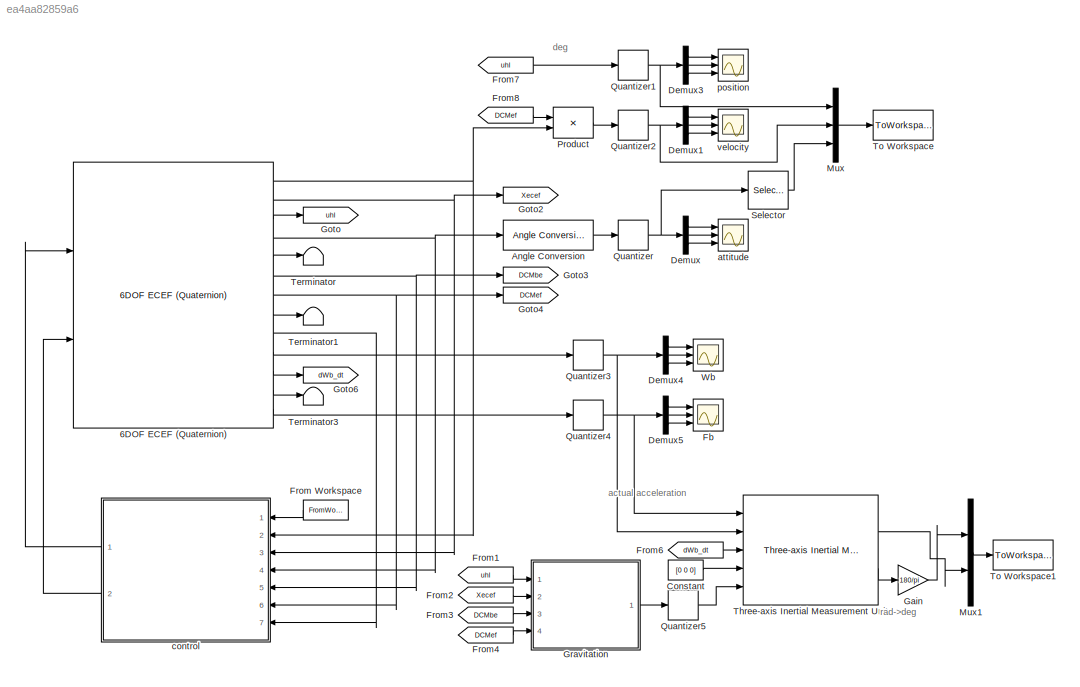
MODEL slx_ea4aa82859a6
KIND model
CONFIG AbsTol = auto
CONFIG EnableMultiTasking = off
CONFIG FixedStep = dt
CONFIG MaxStep = auto
CONFIG MinStep = auto
CONFIG RelTol = 1e-3
CONFIG SampleTimeConstraint = Unconstrained
CONFIG Solver = ode4
CONFIG SolverName = ode4
CONFIG StartTime = 0.0
CONFIG StopTime = T
BLOCK [Reference] 6DOF ECEF (Quaternion)  REF=aerolib6dof2/6DOF ECEF (Quaternion)
  Ports = [2, 13]
  SourceBlock = aerolib6dof2/6DOF ECEF (Quaternion)
  SourceProductBaseCode = AE
  SourceProductName = Aerospace Blockset
  SourceType = 6DOF EoM (ECEF)
BLOCK [Reference] Angle Conversion  REF=aerolibconvert2/Angle Conversion
  Ports = [1, 1]
  SourceBlock = aerolibconvert2/Angle Conversion
  SourceProductBaseCode = AE
  SourceProductName = Aerospace Blockset
  SourceType = Angle Conversion
BLOCK [Constant] Constant
  Value = [0 0 0]
BLOCK [Demux] Demux
  Commented = on
  DisplayOption = bar
  Outputs = 3
  Ports = [1, 3]
BLOCK [Demux] Demux1
  Commented = on
  DisplayOption = bar
  Outputs = 3
  Ports = [1, 3]
BLOCK [Demux] Demux3
  Commented = on
  DisplayOption = bar
  Outputs = 3
  Ports = [1, 3]
BLOCK [Demux] Demux4
  Commented = on
  DisplayOption = bar
  Outputs = 3
  Ports = [1, 3]
BLOCK [Demux] Demux5
  Commented = on
  DisplayOption = bar
  Outputs = 3
  Ports = [1, 3]
BLOCK [Scope] Fb
  Commented = on
  Floating = off
  NumInputPorts = 3
  Ports = [3]
  ScopeSpecificationString = Simulink.scopes.TimeScopeBlockCfg('CurrentConfiguration', extmgr.ConfigurationSet(extmgr.Configuration('Core','General UI',true),extmgr.Configuration('Core','Source UI',true),extmgr.Configuration('Sources','WiredSimulink',true,'DataLoggingVariableName','ScopeData2'),extmgr.Configuration('Visuals','Time Domain',true,'SerializedDisplays',{struct('MinYLimReal','0.010395','MaxYLimReal','0.010461','YLa...<+2797ch>
BLOCK [FromWorkspace] From Workspace
  OutputAfterFinalValue = Setting to zero
  SampleTime = 0
  VariableName = cmd
  ZeroCross = on
BLOCK [From] From1
  GotoTag = uhl
BLOCK [From] From2
  GotoTag = Xecef
BLOCK [From] From3
  GotoTag = DCMbe
BLOCK [From] From4
  GotoTag = DCMef
BLOCK [From] From6
  GotoTag = dWb_dt
BLOCK [From] From7
  GotoTag = uhl
BLOCK [From] From8
  GotoTag = DCMef
BLOCK [Gain] Gain
  Gain = 180/pi
  OutDataTypeStr = Inherit: Inherit via internal rule
  ParamDataTypeStr = Inherit: Inherit via internal rule
  SaturateOnIntegerOverflow = off
BLOCK [Goto] Goto
  GotoTag = uhl
BLOCK [Goto] Goto2
  GotoTag = Xecef
BLOCK [Goto] Goto3
  GotoTag = DCMbe
BLOCK [Goto] Goto4
  GotoTag = DCMef
BLOCK [Goto] Goto6
  GotoTag = dWb_dt
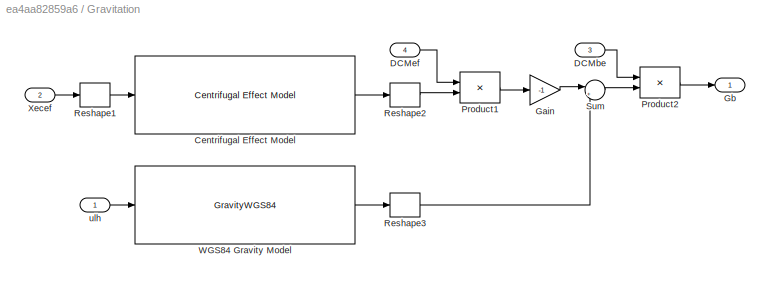
BLOCK [SubSystem] Gravitation
  Ports = [4, 1]
  RequestExecContextInheritance = off
BLOCK [Reference] Gravitation/Centrifugal Effect Model  REF=aerolibgravity2/Centrifugal Effect Model
  Ports = [1, 1]
  SourceBlock = aerolibgravity2/Centrifugal Effect Model
  SourceProductBaseCode = AE
  SourceProductName = Aerospace Blockset
  SourceType = Centrifugal Effect Model
BLOCK [Inport] Gravitation/DCMbe
  IconDisplay = Port number
  Port = 3
BLOCK [Inport] Gravitation/DCMef
  IconDisplay = Port number
  Port = 4
BLOCK [Gain] Gravitation/Gain
  Gain = -1
  OutDataTypeStr = Inherit: Inherit via internal rule
  ParamDataTypeStr = Inherit: Inherit via internal rule
  SaturateOnIntegerOverflow = off
BLOCK [Outport] Gravitation/Gb
  IconDisplay = Port number
BLOCK [Product] Gravitation/Product1
  InputSameDT = off
  Multiplication = Matrix(*)
  OutDataTypeStr = Inherit: Inherit via internal rule
  Ports = [2, 1]
  RndMeth = Floor
  SaturateOnIntegerOverflow = off
BLOCK [Product] Gravitation/Product2
  InputSameDT = off
  Multiplication = Matrix(*)
  OutDataTypeStr = Inherit: Inherit via internal rule
  Ports = [2, 1]
  RndMeth = Floor
  SaturateOnIntegerOverflow = off
BLOCK [Reshape] Gravitation/Reshape1
  Ports = [1, 1]
BLOCK [Reshape] Gravitation/Reshape2
  Ports = [1, 1]
BLOCK [Reshape] Gravitation/Reshape3
  Ports = [1, 1]
BLOCK [Sum] Gravitation/Sum
  IconShape = round
  InputSameDT = off
  Inputs = |++
  OutDataTypeStr = Inherit: Inherit via internal rule
  Ports = [2, 1]
  SaturateOnIntegerOverflow = off
BLOCK [GravityWGS84] Gravitation/WGS84 Gravity Model  
  Ports = [1, 1]
BLOCK [Inport] Gravitation/Xecef
  IconDisplay = Port number
  Port = 2
BLOCK [Inport] Gravitation/ulh
  IconDisplay = Port number
BLOCK [Mux] Mux
  DisplayOption = bar
  Inputs = 3
  Ports = [3, 1]
BLOCK [Mux] Mux1
  DisplayOption = bar
  Inputs = 2
  Ports = [2, 1]
BLOCK [Product] Product
  InputSameDT = off
  Multiplication = Matrix(*)
  OutDataTypeStr = Inherit: Inherit via internal rule
  Ports = [2, 1]
  RndMeth = Floor
  SaturateOnIntegerOverflow = off
BLOCK [Quantizer] Quantizer
  QuantizationInterval = 1e-4
BLOCK [Quantizer] Quantizer1
  QuantizationInterval = [1e-10 1e-10 0.001]
BLOCK [Quantizer] Quantizer2
  QuantizationInterval = 0.001
BLOCK [Quantizer] Quantizer3
  QuantizationInterval = 1e-12
BLOCK [Quantizer] Quantizer4
  QuantizationInterval = 1e-12
BLOCK [Quantizer] Quantizer5
  QuantizationInterval = 1e-12
BLOCK [Selector] Selector
  IndexOptions = Index vector (dialog)
  Indices = [3 2 1]
  InputPortWidth = 3
  OutputSizes = 1
  Ports = [1, 1]
BLOCK [Terminator] Terminator
BLOCK [Terminator] Terminator1
BLOCK [Terminator] Terminator3
BLOCK [Reference] Three-axis Inertial Measurement Unit  REF=aerolibnav/Three-axis Inertial
Measurement Unit
  Ports = [5, 2]
  SourceBlock = aerolibnav/Three-axis Inertial\nMeasurement Unit
  SourceProductBaseCode = AE
  SourceProductName = Aerospace Blockset
  SourceType = Three-axis Inertial Measurement Unit
BLOCK [ToWorkspace] To Workspace
  FixptAsFi = on
  MaxDataPoints = inf
  Ports = [1]
  SampleTime = -1
  Save2DSignal = 3-D array (concatenate along third dimension)
  VariableName = traj
BLOCK [ToWorkspace] To Workspace1
  FixptAsFi = on
  MaxDataPoints = inf
  Ports = [1]
  SampleTime = -1
  Save2DSignal = 3-D array (concatenate along third dimension)
  VariableName = imu
BLOCK [Scope] Wb
  Commented = on
  Floating = off
  NumInputPorts = 3
  Ports = [3]
  ScopeSpecificationString = Simulink.scopes.TimeScopeBlockCfg('CurrentConfiguration', extmgr.ConfigurationSet(extmgr.Configuration('Core','General UI',true),extmgr.Configuration('Core','Source UI',true),extmgr.Configuration('Sources','WiredSimulink',true,'DataLoggingVariableName','ScopeData4'),extmgr.Configuration('Visuals','Time Domain',true,'SerializedDisplays',{struct('MinYLimReal','0.000076024','MaxYLimReal','0.000076031...<+2825ch>
BLOCK [Scope] attitude
  Commented = on
  Floating = off
  NumInputPorts = 3
  Ports = [3]
  ScopeSpecificationString = Simulink.scopes.TimeScopeBlockCfg('CurrentConfiguration', extmgr.ConfigurationSet(extmgr.Configuration('Core','General UI',true),extmgr.Configuration('Core','Source UI',true),extmgr.Configuration('Sources','WiredSimulink',true),extmgr.Configuration('Visuals','Time Domain',true,'SerializedDisplays',{struct('MinYLimReal','-0.00000056','MaxYLimReal','0.00000007','YLabelReal','','MinYLimMag','0.000000...<+2781ch>
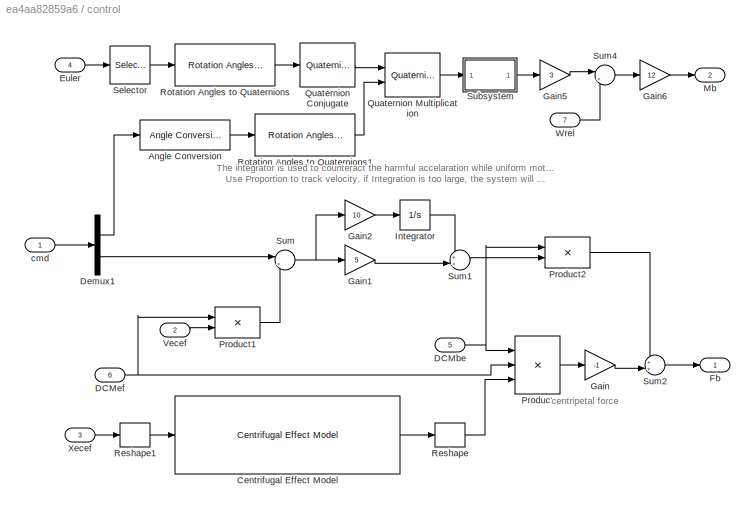
BLOCK [SubSystem] control
  Ports = [7, 2]
  RequestExecContextInheritance = off
BLOCK [Reference] control/Angle Conversion  REF=aerolibconvert2/Angle Conversion
  Ports = [1, 1]
  SourceBlock = aerolibconvert2/Angle Conversion
  SourceProductBaseCode = AE
  SourceProductName = Aerospace Blockset
  SourceType = Angle Conversion
BLOCK [Reference] control/Centrifugal Effect Model  REF=aerolibgravity2/Centrifugal Effect Model
  Ports = [1, 1]
  SourceBlock = aerolibgravity2/Centrifugal Effect Model
  SourceProductBaseCode = AE
  SourceProductName = Aerospace Blockset
  SourceType = Centrifugal Effect Model
BLOCK [Inport] control/DCMbe
  IconDisplay = Port number
  Port = 5
BLOCK [Inport] control/DCMef
  IconDisplay = Port number
  Port = 6
BLOCK [Demux] control/Demux1
  DisplayOption = bar
  Outputs = [3 3]
  Ports = [1, 2]
BLOCK [Inport] control/Euler
  IconDisplay = Port number
  Port = 4
BLOCK [Outport] control/Fb
  IconDisplay = Port number
BLOCK [Gain] control/Gain
  Gain = -1
  OutDataTypeStr = Inherit: Inherit via internal rule
  ParamDataTypeStr = Inherit: Inherit via internal rule
  SaturateOnIntegerOverflow = off
BLOCK [Gain] control/Gain1
  Gain = 5
  OutDataTypeStr = Inherit: Inherit via internal rule
  ParamDataTypeStr = Inherit: Inherit via internal rule
  SaturateOnIntegerOverflow = off
BLOCK [Gain] control/Gain2
  Gain = 10
  OutDataTypeStr = Inherit: Inherit via internal rule
  ParamDataTypeStr = Inherit: Inherit via internal rule
  SaturateOnIntegerOverflow = off
BLOCK [Gain] control/Gain5
  Gain = 3
  OutDataTypeStr = Inherit: Inherit via internal rule
  ParamDataTypeStr = Inherit: Inherit via internal rule
  SaturateOnIntegerOverflow = off
BLOCK [Gain] control/Gain6
  Gain = 12
  OutDataTypeStr = Inherit: Inherit via internal rule
  ParamDataTypeStr = Inherit: Inherit via internal rule
  SaturateOnIntegerOverflow = off
BLOCK [Integrator] control/Integrator
  LimitOutput = on
  LowerSaturationLimit = -0.2
  Ports = [1, 1]
  UpperSaturationLimit = 0.2
BLOCK [Outport] control/Mb
  IconDisplay = Port number
  Port = 2
BLOCK [Product] control/Product
  InputSameDT = off
  Inputs = 3
  Multiplication = Matrix(*)
  OutDataTypeStr = Inherit: Inherit via internal rule
  Ports = [3, 1]
  RndMeth = Floor
  SaturateOnIntegerOverflow = off
BLOCK [Product] control/Product1
  InputSameDT = off
  Multiplication = Matrix(*)
  OutDataTypeStr = Inherit: Inherit via internal rule
  Ports = [2, 1]
  RndMeth = Floor
  SaturateOnIntegerOverflow = off
BLOCK [Product] control/Product2
  InputSameDT = off
  Multiplication = Matrix(*)
  OutDataTypeStr = Inherit: Inherit via internal rule
  Ports = [2, 1]
  RndMeth = Floor
  SaturateOnIntegerOverflow = off
BLOCK [Reference] control/Quaternion Conjugate  REF=aerolibutil/Quaternion
Conjugate
  Ports = [1, 1]
  SourceBlock = aerolibutil/Quaternion\nConjugate
  SourceProductBaseCode = AE
  SourceProductName = Aerospace Blockset
  SourceType = Quaternion Conjugate
BLOCK [Reference] control/Quaternion Multiplication  REF=aerolibutil/Quaternion
Multiplication
  Ports = [2, 1]
  SourceBlock = aerolibutil/Quaternion\nMultiplication
  SourceProductBaseCode = AE
  SourceProductName = Aerospace Blockset
  SourceType = Quaternion Multiplication
BLOCK [Reshape] control/Reshape
  Ports = [1, 1]
BLOCK [Reshape] control/Reshape1
  Ports = [1, 1]
BLOCK [Reference] control/Rotation Angles to Quaternions  REF=sharedtransform/Rotation Angles to Quaternions
  AttributesFormatString = Rotation Order: %<rotationOrder>
  Ports = [1, 1]
  SourceBlock = sharedtransform/Rotation Angles to Quaternions
  SourceProductBaseCode = AE
  SourceProductName = Aerospace Blockset
  SourceType = Ang2Quat
BLOCK [Reference] control/Rotation Angles to Quaternions1  REF=sharedtransform/Rotation Angles to Quaternions
  AttributesFormatString = Rotation Order: %<rotationOrder>
  Ports = [1, 1]
  SourceBlock = sharedtransform/Rotation Angles to Quaternions
  SourceProductBaseCode = AE
  SourceProductName = Aerospace Blockset
  SourceType = Ang2Quat
BLOCK [Selector] control/Selector
  IndexOptions = Index vector (dialog)
  Indices = [3 2 1]
  InputPortWidth = 3
  OutputSizes = 1
  Ports = [1, 1]
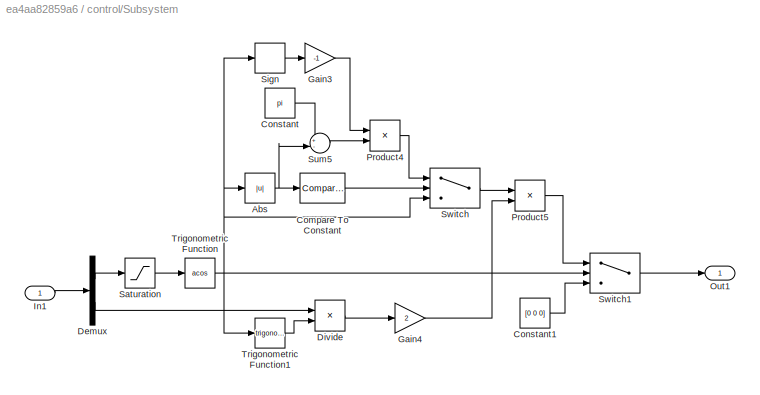
BLOCK [SubSystem] control/Subsystem
  Ports = [1, 1]
  RequestExecContextInheritance = off
BLOCK [Abs] control/Subsystem/Abs
  SaturateOnIntegerOverflow = off
BLOCK [Reference] control/Subsystem/Compare To Constant  REF=simulink/Logic and Bit
Operations/Compare
To Constant
  Ports = [1, 1]
  SourceBlock = simulink/Logic and Bit\nOperations/Compare\nTo Constant
  SourceProductBaseCode = SL
  SourceProductName = Simulink
  SourceType = Compare To Constant
BLOCK [Constant] control/Subsystem/Constant
  Value = pi
BLOCK [Constant] control/Subsystem/Constant1
  Value = [0 0 0]
BLOCK [Demux] control/Subsystem/Demux
  DisplayOption = bar
  Outputs = [1 3]
  Ports = [1, 2]
BLOCK [Product] control/Subsystem/Divide
  InputSameDT = off
  Inputs = */
  OutDataTypeStr = Inherit: Inherit via internal rule
  Ports = [2, 1]
  RndMeth = Floor
  SaturateOnIntegerOverflow = off
BLOCK [Gain] control/Subsystem/Gain3
  Gain = -1
  OutDataTypeStr = Inherit: Inherit via internal rule
  ParamDataTypeStr = Inherit: Inherit via internal rule
  SaturateOnIntegerOverflow = off
BLOCK [Gain] control/Subsystem/Gain4
  Gain = 2
  OutDataTypeStr = Inherit: Inherit via internal rule
  ParamDataTypeStr = Inherit: Inherit via internal rule
  SaturateOnIntegerOverflow = off
BLOCK [Inport] control/Subsystem/In1
  IconDisplay = Port number
BLOCK [Outport] control/Subsystem/Out1
  IconDisplay = Port number
BLOCK [Product] control/Subsystem/Product4
  InputSameDT = off
  OutDataTypeStr = Inherit: Inherit via internal rule
  Ports = [2, 1]
  RndMeth = Floor
  SaturateOnIntegerOverflow = off
BLOCK [Product] control/Subsystem/Product5
  InputSameDT = off
  OutDataTypeStr = Inherit: Inherit via internal rule
  Ports = [2, 1]
  RndMeth = Floor
  SaturateOnIntegerOverflow = off
BLOCK [Saturate] control/Subsystem/Saturation
  InputPortMap = u0
  LowerLimit = -1
  Ports = [1, 1]
  UpperLimit = 1
BLOCK [Signum] control/Subsystem/Sign
BLOCK [Sum] control/Subsystem/Sum5
  IconShape = round
  InputSameDT = off
  Inputs = +-|
  OutDataTypeStr = Inherit: Inherit via internal rule
  Ports = [2, 1]
  SaturateOnIntegerOverflow = off
BLOCK [Switch] control/Subsystem/Switch
  Criteria = u2 > Threshold
  InputSameDT = off
  SaturateOnIntegerOverflow = off
BLOCK [Switch] control/Subsystem/Switch1
  Criteria = u2 ~= 0
  InputSameDT = off
  SaturateOnIntegerOverflow = off
BLOCK [Trigonometry] control/Subsystem/Trigonometric Function
  Operator = acos
  Ports = [1, 1]
BLOCK [Trigonometry] control/Subsystem/Trigonometric Function1
  Ports = [1, 1]
BLOCK [Sum] control/Sum
  IconShape = round
  InputSameDT = off
  Inputs = |+-
  OutDataTypeStr = Inherit: Inherit via internal rule
  Ports = [2, 1]
  SaturateOnIntegerOverflow = off
BLOCK [Sum] control/Sum1
  IconShape = round
  InputSameDT = off
  Inputs = ++|
  OutDataTypeStr = Inherit: Inherit via internal rule
  Ports = [2, 1]
  SaturateOnIntegerOverflow = off
BLOCK [Sum] control/Sum2
  IconShape = round
  InputSameDT = off
  Inputs = ++|
  OutDataTypeStr = Inherit: Inherit via internal rule
  Ports = [2, 1]
  SaturateOnIntegerOverflow = off
BLOCK [Sum] control/Sum4
  IconShape = round
  InputSameDT = off
  Inputs = |+-
  OutDataTypeStr = Inherit: Inherit via internal rule
  Ports = [2, 1]
  SaturateOnIntegerOverflow = off
BLOCK [Inport] control/Vecef
  IconDisplay = Port number
  Port = 2
BLOCK [Inport] control/Wrel
  IconDisplay = Port number
  Port = 7
BLOCK [Inport] control/Xecef
  IconDisplay = Port number
  Port = 3
BLOCK [Inport] control/cmd
  IconDisplay = Port number
BLOCK [Scope] position
  Commented = on
  Floating = off
  NumInputPorts = 3
  Ports = [3]
  ScopeSpecificationString = Simulink.scopes.TimeScopeBlockCfg('CurrentConfiguration', extmgr.ConfigurationSet(extmgr.Configuration('Core','General UI',true),extmgr.Configuration('Core','Source UI',true),extmgr.Configuration('Sources','WiredSimulink',true,'DataLoggingVariableName','ScopeData2'),extmgr.Configuration('Visuals','Time Domain',true,'SerializedDisplays',{struct('MinYLimReal','29.96813','MaxYLimReal','30.28682','YLa...<+2804ch>
BLOCK [Scope] velocity
  Commented = on
  Floating = off
  NumInputPorts = 3
  Ports = [3]
  ScopeSpecificationString = Simulink.scopes.TimeScopeBlockCfg('CurrentConfiguration', extmgr.ConfigurationSet(extmgr.Configuration('Core','General UI',true),extmgr.Configuration('Core','Source UI',true),extmgr.Configuration('Sources','WiredSimulink',true,'DataLoggingVariableName','ScopeData1'),extmgr.Configuration('Visuals','Time Domain',true,'SerializedDisplays',{struct('MinYLimReal','-3.75338','MaxYLimReal','33.78038','YLa...<+2798ch>
ANNOTATION (root): actual acceleration
ANNOTATION (root): deg
ANNOTATION (root): rad->deg
ANNOTATION control: The integrator is used to counteract the harmful accelaration while uniform motion. Use Proportion to track velocity, if Integration is too large, the system will overshoot.
ANNOTATION control: centripetal force
NET 6DOF ECEF (Quaternion):1 -> Product:2, control:2
LINE 6DOF ECEF (Quaternion):10 -> Quantizer3:1
LINE 6DOF ECEF (Quaternion):11 -> Goto6:1
LINE 6DOF ECEF (Quaternion):12 -> Terminator3:1
LINE 6DOF ECEF (Quaternion):13 -> Quantizer4:1
NET 6DOF ECEF (Quaternion):2 -> Goto2:1, control:3
LINE 6DOF ECEF (Quaternion):3 -> Goto:1
NET 6DOF ECEF (Quaternion):4 -> Angle Conversion:1, control:4
LINE 6DOF ECEF (Quaternion):5 -> Terminator:1
NET 6DOF ECEF (Quaternion):6 -> Goto3:1, control:5
NET 6DOF ECEF (Quaternion):7 -> Goto4:1, control:6
LINE 6DOF ECEF (Quaternion):8 -> Terminator1:1
LINE 6DOF ECEF (Quaternion):9 -> control:7
LINE Angle Conversion:1 -> Quantizer:1
LINE Constant:1 -> Three-axis Inertial Measurement Unit:4
LINE Demux1:1 -> velocity:1
LINE Demux1:2 -> velocity:2
LINE Demux1:3 -> velocity:3
LINE Demux3:1 -> position:1
LINE Demux3:2 -> position:2
LINE Demux3:3 -> position:3
LINE Demux4:1 -> Wb:1
LINE Demux4:2 -> Wb:2
LINE Demux4:3 -> Wb:3
LINE Demux5:1 -> Fb:1
LINE Demux5:2 -> Fb:2
LINE Demux5:3 -> Fb:3
LINE Demux:1 -> attitude:1
LINE Demux:2 -> attitude:2
LINE Demux:3 -> attitude:3
LINE From Workspace:1 -> control:1
LINE From1:1 -> Gravitation:1
LINE From2:1 -> Gravitation:2
LINE From3:1 -> Gravitation:3
LINE From4:1 -> Gravitation:4
LINE From6:1 -> Three-axis Inertial Measurement Unit:3
LINE From7:1 -> Quantizer1:1
LINE From8:1 -> Product:1
LINE Gain:1 -> Mux1:1
LINE Gravitation/Centrifugal Effect Model:1 -> Gravitation/Reshape2:1
LINE Gravitation/DCMbe:1 -> Gravitation/Product2:1
LINE Gravitation/DCMef:1 -> Gravitation/Product1:1
LINE Gravitation/Gain:1 -> Gravitation/Sum:1
LINE Gravitation/Product1:1 -> Gravitation/Gain:1
LINE Gravitation/Product2:1 -> Gravitation/Gb:1
LINE Gravitation/Reshape1:1 -> Gravitation/Centrifugal Effect Model:1
LINE Gravitation/Reshape2:1 -> Gravitation/Product1:2
LINE Gravitation/Reshape3:1 -> Gravitation/Sum:2
LINE Gravitation/Sum:1 -> Gravitation/Product2:2
LINE Gravitation/WGS84 Gravity Model  :1 -> Gravitation/Reshape3:1
LINE Gravitation/Xecef:1 -> Gravitation/Reshape1:1
LINE Gravitation/ulh:1 -> Gravitation/WGS84 Gravity Model  :1
LINE Gravitation:1 -> Quantizer5:1
LINE Mux1:1 -> To Workspace1:1
LINE Mux:1 -> To Workspace:1
LINE Product:1 -> Quantizer2:1
NET Quantizer1:1 -> Demux3:1, Mux:1
NET Quantizer2:1 -> Demux1:1, Mux:2
NET Quantizer3:1 -> Demux4:1, Three-axis Inertial Measurement Unit:2
NET Quantizer4:1 -> Demux5:1, Three-axis Inertial Measurement Unit:1
LINE Quantizer5:1 -> Three-axis Inertial Measurement Unit:5
NET Quantizer:1 -> Demux:1, Selector:1
LINE Selector:1 -> Mux:3
LINE Three-axis Inertial Measurement Unit:1 -> Mux1:2
LINE Three-axis Inertial Measurement Unit:2 -> Gain:1
LINE control/Angle Conversion:1 -> control/Rotation Angles to Quaternions1:1
LINE control/Centrifugal Effect Model:1 -> control/Reshape:1
NET control/DCMbe:1 -> control/Product2:1, control/Product:1
NET control/DCMef:1 -> control/Product1:1, control/Product:2
LINE control/Demux1:1 -> control/Angle Conversion:1
LINE control/Demux1:2 -> control/Sum:1
LINE control/Euler:1 -> control/Selector:1
LINE control/Gain1:1 -> control/Sum1:2
LINE control/Gain2:1 -> control/Integrator:1
LINE control/Gain5:1 -> control/Sum4:1
LINE control/Gain6:1 -> control/Mb:1
LINE control/Gain:1 -> control/Sum2:2
LINE control/Integrator:1 -> control/Sum1:1
LINE control/Product1:1 -> control/Sum:2
LINE control/Product2:1 -> control/Sum2:1
LINE control/Product:1 -> control/Gain:1
LINE control/Quaternion Conjugate:1 -> control/Quaternion Multiplication:1
LINE control/Quaternion Multiplication:1 -> control/Subsystem:1
LINE control/Reshape1:1 -> control/Centrifugal Effect Model:1
LINE control/Reshape:1 -> control/Product:3
LINE control/Rotation Angles to Quaternions1:1 -> control/Quaternion Multiplication:2
LINE control/Rotation Angles to Quaternions:1 -> control/Quaternion Conjugate:1
LINE control/Selector:1 -> control/Rotation Angles to Quaternions:1
NET control/Subsystem/Abs:1 -> control/Subsystem/Compare To Constant:1, control/Subsystem/Sum5:2
LINE control/Subsystem/Compare To Constant:1 -> control/Subsystem/Switch:2
LINE control/Subsystem/Constant1:1 -> control/Subsystem/Switch1:3
LINE control/Subsystem/Constant:1 -> control/Subsystem/Sum5:1
LINE control/Subsystem/Demux:1 -> control/Subsystem/Saturation:1
LINE control/Subsystem/Demux:2 -> control/Subsystem/Divide:1
LINE control/Subsystem/Divide:1 -> control/Subsystem/Gain4:1
LINE control/Subsystem/Gain3:1 -> control/Subsystem/Product4:1
LINE control/Subsystem/Gain4:1 -> control/Subsystem/Product5:2
LINE control/Subsystem/In1:1 -> control/Subsystem/Demux:1
LINE control/Subsystem/Product4:1 -> control/Subsystem/Switch:1
LINE control/Subsystem/Product5:1 -> control/Subsystem/Switch1:1
LINE control/Subsystem/Saturation:1 -> control/Subsystem/Trigonometric Function:1
LINE control/Subsystem/Sign:1 -> control/Subsystem/Gain3:1
LINE control/Subsystem/Sum5:1 -> control/Subsystem/Product4:2
LINE control/Subsystem/Switch1:1 -> control/Subsystem/Out1:1
LINE control/Subsystem/Switch:1 -> control/Subsystem/Product5:1
LINE control/Subsystem/Trigonometric Function1:1 -> control/Subsystem/Divide:2
NET control/Subsystem/Trigonometric Function:1 -> control/Subsystem/Abs:1, control/Subsystem/Sign:1, control/Subsystem/Switch1:2, control/Subsystem/Switch:3, control/Subsystem/Trigonometric Function1:1
LINE control/Subsystem:1 -> control/Gain5:1
LINE control/Sum1:1 -> control/Product2:2
LINE control/Sum2:1 -> control/Fb:1
LINE control/Sum4:1 -> control/Gain6:1
NET control/Sum:1 -> control/Gain1:1, control/Gain2:1
LINE control/Vecef:1 -> control/Product1:2
LINE control/Wrel:1 -> control/Sum4:2
LINE control/Xecef:1 -> control/Reshape1:1
LINE control/cmd:1 -> control/Demux1:1
LINE control:1 -> 6DOF ECEF (Quaternion):1
LINE control:2 -> 6DOF ECEF (Quaternion):2
note: NET lines group one-source signal fan-out (src -> all destinations, sorted); 1:1 wires keep LINE
